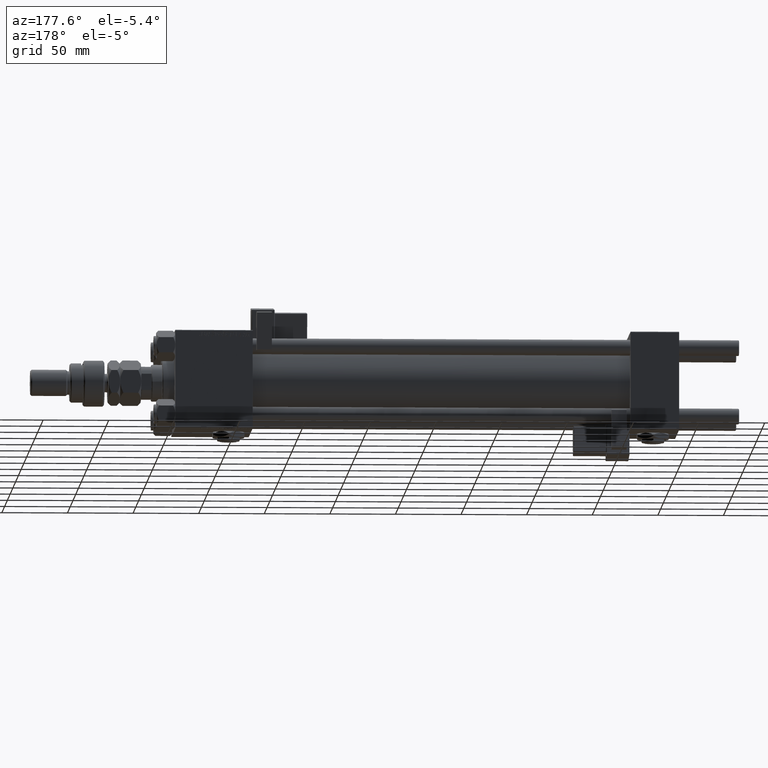
[diagram: clean part render]
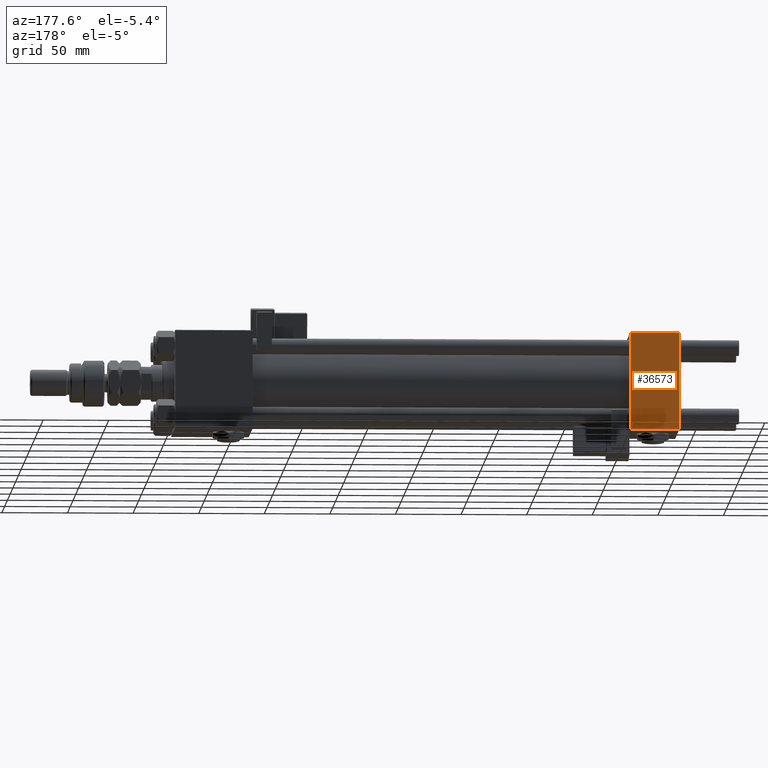
[diagram: same view with one face highlighted and labeled with its STEP entity id]
A machine part, auxiliary view. The second image highlights one B-rep face of the part: STEP entity #36573.
In plain terms, the highlighted planar face has unit normal (0, 1, 0).
Its self-contained STEP definition (entity closure, byte-faithful):
#1172 = DIRECTION ( 'NONE',  ( 0.000000000000000000, -0.000000000000000000, 1.000000000000000000 ) ) ;
#2352 = AXIS2_PLACEMENT_3D ( 'NONE', #23009, #36506, #1172 ) ;
#5090 = CARTESIAN_POINT ( 'NONE',  ( 37.00000000000000000, 37.49999999999999289, -36.99999999999998579 ) ) ;
#13054 = DIRECTION ( 'NONE',  ( 0.000000000000000000, 0.000000000000000000, -1.000000000000000000 ) ) ;
#14337 = VECTOR ( 'NONE', #13054, 1000.000000000000000 ) ;
#16666 = CARTESIAN_POINT ( 'NONE',  ( 37.00000000000000000, 37.49999999999999289, -36.99999999999998579 ) ) ;
#19222 = ORIENTED_EDGE ( 'NONE', *, *, #51319, .F. ) ;
#19532 = LINE ( 'NONE', #49968, #45462 ) ;
#20450 = VECTOR ( 'NONE', #30400, 1000.000000000000000 ) ;
#21670 = CARTESIAN_POINT ( 'NONE',  ( 37.00000000000000000, 37.49999999999999289, 37.50000000000000000 ) ) ;
#23009 = CARTESIAN_POINT ( 'NONE',  ( 37.00000000000000000, 37.49999999999999289, 37.50000000000000000 ) ) ;
#23174 = EDGE_CURVE ( 'NONE', #40733, #52553, #29849, .T. ) ;
#24041 = ORIENTED_EDGE ( 'NONE', *, *, #23174, .T. ) ;
#24803 = EDGE_LOOP ( 'NONE', ( #32349, #24041, #19222, #55634 ) ) ;
#26272 = EDGE_CURVE ( 'NONE', #53856, #42404, #51396, .T. ) ;
#27324 = PLANE ( 'NONE',  #2352 ) ;
#28358 = CARTESIAN_POINT ( 'NONE',  ( 0.000000000000000000, 37.49999999999999289, 37.00000000000000000 ) ) ;
#29849 = LINE ( 'NONE', #16666, #37709 ) ;
#30400 = DIRECTION ( 'NONE',  ( 1.000000000000000000, 0.000000000000000000, 0.000000000000000000 ) ) ;
#32349 = ORIENTED_EDGE ( 'NONE', *, *, #37001, .T. ) ;
#34431 = CARTESIAN_POINT ( 'NONE',  ( 37.00000000000000000, 37.49999999999999289, 37.00000000000000000 ) ) ;
#36506 = DIRECTION ( 'NONE',  ( -0.000000000000000000, 1.000000000000000000, 0.000000000000000000 ) ) ;
#36573 = ADVANCED_FACE ( 'NONE', ( #49148 ), #27324, .T. ) ;
#37001 = EDGE_CURVE ( 'NONE', #42404, #40733, #47819, .T. ) ;
#37709 = VECTOR ( 'NONE', #42510, 1000.000000000000000 ) ;
#40733 = VERTEX_POINT ( 'NONE', #5090 ) ;
#41626 = CARTESIAN_POINT ( 'NONE',  ( 0.000000000000000000, 37.49999999999999289, -36.99999999999998579 ) ) ;
#42404 = VERTEX_POINT ( 'NONE', #42772 ) ;
#42510 = DIRECTION ( 'NONE',  ( -1.000000000000000000, 0.000000000000000000, 0.000000000000000000 ) ) ;
#42772 = CARTESIAN_POINT ( 'NONE',  ( 37.00000000000000000, 37.49999999999999289, 37.00000000000000000 ) ) ;
#45462 = VECTOR ( 'NONE', #50538, 1000.000000000000000 ) ;
#47819 = LINE ( 'NONE', #21670, #14337 ) ;
#49148 = FACE_OUTER_BOUND ( 'NONE', #24803, .T. ) ;
#49968 = CARTESIAN_POINT ( 'NONE',  ( 0.000000000000000000, 37.49999999999999289, 37.50000000000000000 ) ) ;
#50538 = DIRECTION ( 'NONE',  ( 0.000000000000000000, 0.000000000000000000, -1.000000000000000000 ) ) ;
#51319 = EDGE_CURVE ( 'NONE', #53856, #52553, #19532, .T. ) ;
#51396 = LINE ( 'NONE', #34431, #20450 ) ;
#52553 = VERTEX_POINT ( 'NONE', #41626 ) ;
#53856 = VERTEX_POINT ( 'NONE', #28358 ) ;
#55634 = ORIENTED_EDGE ( 'NONE', *, *, #26272, .T. ) ;